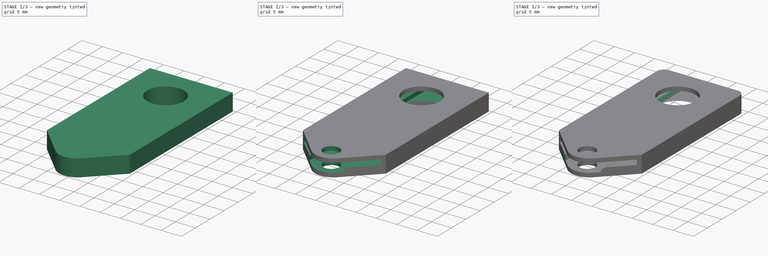
[diagram: build sequence overview — one tinted view per stage of 3, left to right]
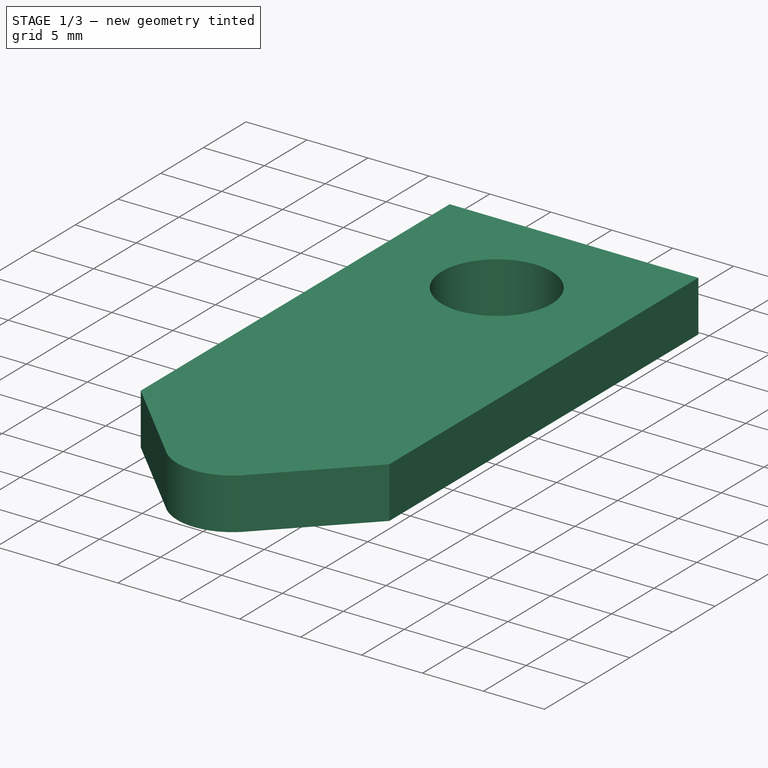
[diagram: stage 1 of 3 — iso view after this stage's code; geometry added in this stage tinted green]
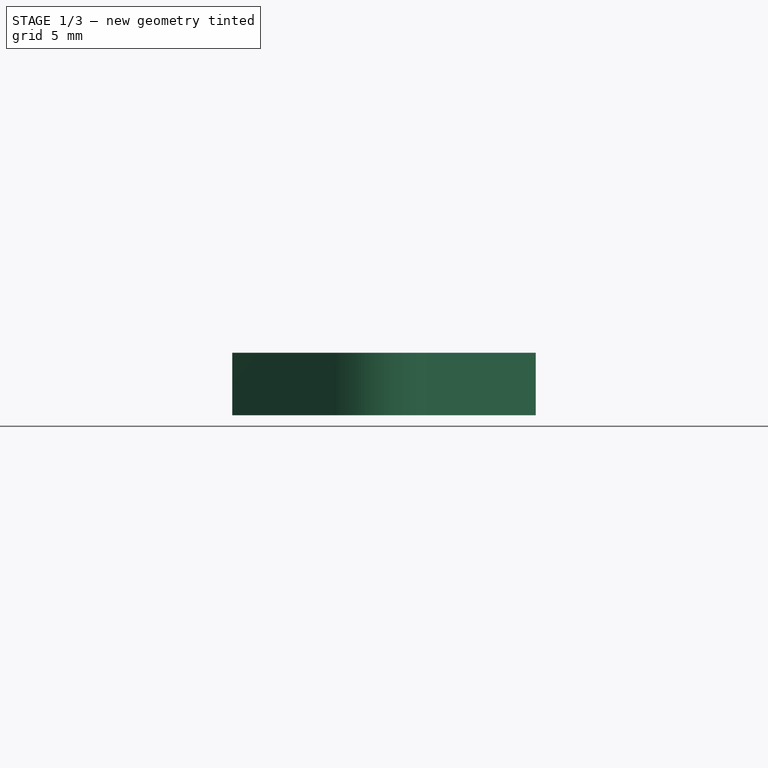
[diagram: stage 1 of 3 — front view after this stage's code; geometry added in this stage tinted green]
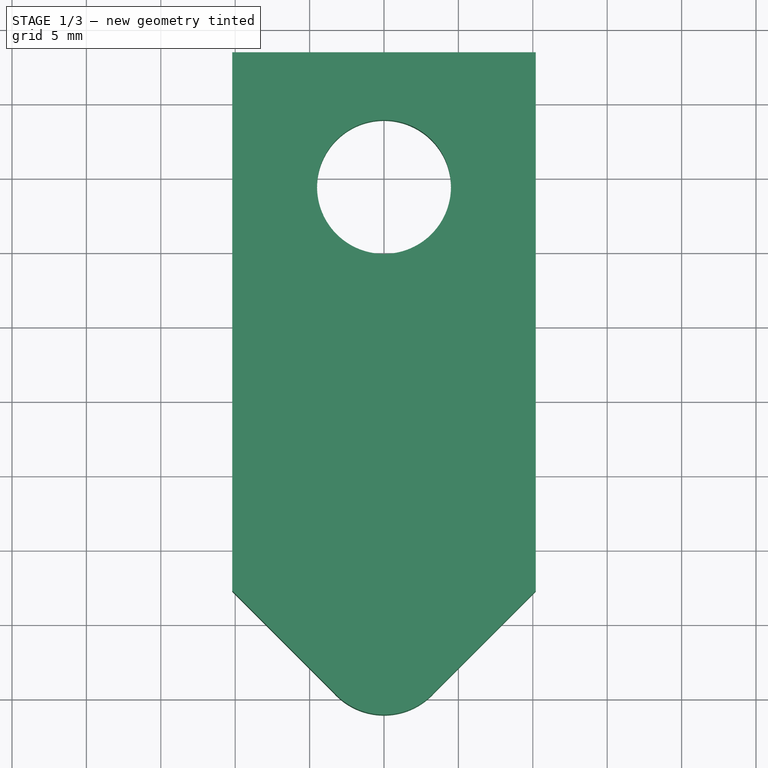
[diagram: stage 1 of 3 — top view after this stage's code; geometry added in this stage tinted green]
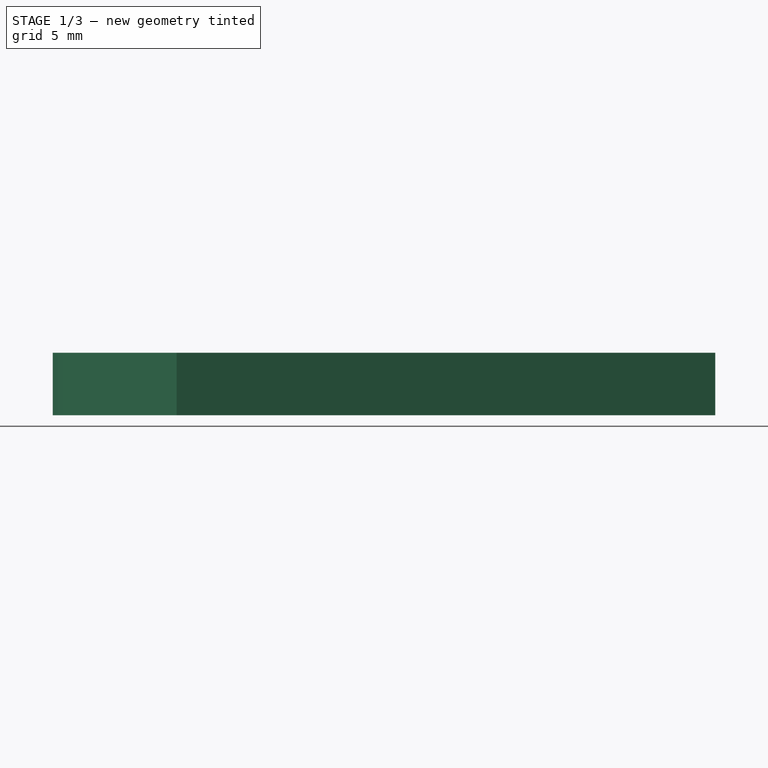
[diagram: stage 1 of 3 — right view after this stage's code; geometry added in this stage tinted green]
FCSTD DOCUMENT  (FreeCAD 0.19R24276 (Git))
Label: nfc_case_simple
License: All rights reserved
LicenseURL: http://en.wikipedia.org/wiki/All_rights_reserved
objects: Part::Feature×16, App::Part×16, Sketcher::SketchObject×4, PartDesign::Pocket×3, PartDesign::Fillet×2, PartDesign::Pad×1, PartDesign::Body×1
note: 33 computed .brp shape members not serialized (recipe doc carries the construction recipe); baked Part::Feature solids carry a one-line shape summary decoded from their .brp

FEATURE [Sketcher::SketchObject] Sketch005  label="top_base_sketch"
  FullyConstrained = true
  MapMode = 5
  Support = -> [XY_Plane019]
  sketch-geometry (6):
    g0: LineSegment StartX=-10.2 StartY=18.45 StartZ=0 EndX=10.2 EndY=18.45 EndZ=0
    g1: LineSegment StartX=10.2 StartY=18.45 StartZ=0 EndX=10.2 EndY=-17.75 EndZ=0
    g2: LineSegment StartX=-10.2 StartY=-17.75 StartZ=0 EndX=-10.2 EndY=18.45 EndZ=0
    g3: ArcOfCircle CenterX=0 CenterY=-21.525 CenterZ=0 NormalX=0 NormalY=0 NormalZ=1 AngleXU=0 Radius=4.54933 StartAngle=3.8749 EndAngle=5.54988
    g4: LineSegment StartX=-10.2 StartY=-17.75 StartZ=0 EndX=-3.38 EndY=-24.57 EndZ=0
    g5: LineSegment StartX=3.38 StartY=-24.57 StartZ=0 EndX=10.2 EndY=-17.75 EndZ=0
  constraints (19):
    c: Coincident(g0,g1)
    c: Coincident(g2,g0)
    c: Horizontal(g0)
    c: Vertical(g1)
    c: Vertical(g2)
    c: Distance(g1) = 36.2
    c: DistanceX(g2,g-1) = 10.2
    c: DistanceY(g1,g-1) = 17.75
    c: PointOnObject(g3,g-2)
    c: DistanceY(g3,g-1) = 21.525
    c: Horizontal(g3,g3)
    c: DistanceX(g2,g1) = 20.4
    c: Horizontal(g2,g1)
    c: Coincident(g4,g2)
    c: Coincident(g4,g3)
    c: Coincident(g5,g3)
    c: Coincident(g5,g1)
    c: Angle(g1,g5) = 2.35619
    c: DistanceY(g3,g-1) = 24.57
FEATURE [PartDesign::Pad] Pad003  label="base_block"
  Direction = (1,1,1)
  Length = 4.2
  Length2 = 100
  Profile = -> Sketch005
  Type = 0
FEATURE [Sketcher::SketchObject] Sketch016  label="air_cutout_sketch"
  FullyConstrained = true
  MapMode = 5
  Support = -> [XY_Plane019]
  sketch-geometry (1):
    g0: Circle CenterX=0 CenterY=9.4 CenterZ=0 NormalX=0 NormalY=0 NormalZ=1 AngleXU=0 Radius=4.5
  constraints (3):
    c: PointOnObject(g0,g-2)
    c: DistanceY(g-1,g0) = 9.4
    c: Radius(g0) = 4.5
FEATURE [PartDesign::Pocket] Pocket005  label="air_hole"
  BaseFeature = -> Pad003
  Length = 5
  Length2 = 100
  Profile = -> Sketch016
  Reversed = true
  Type = 0
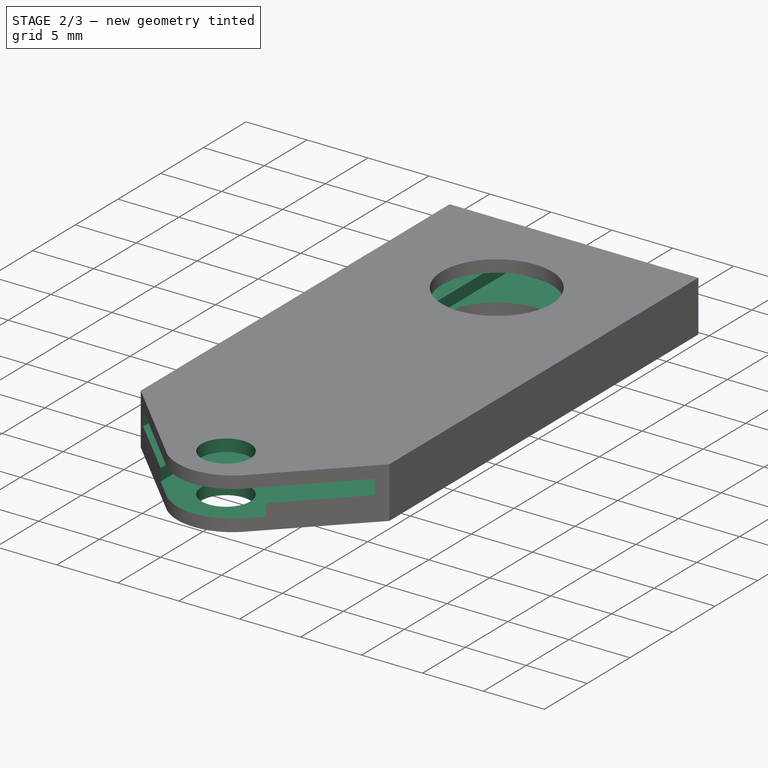
[diagram: stage 2 of 3 — iso view after this stage's code; geometry added in this stage tinted green]
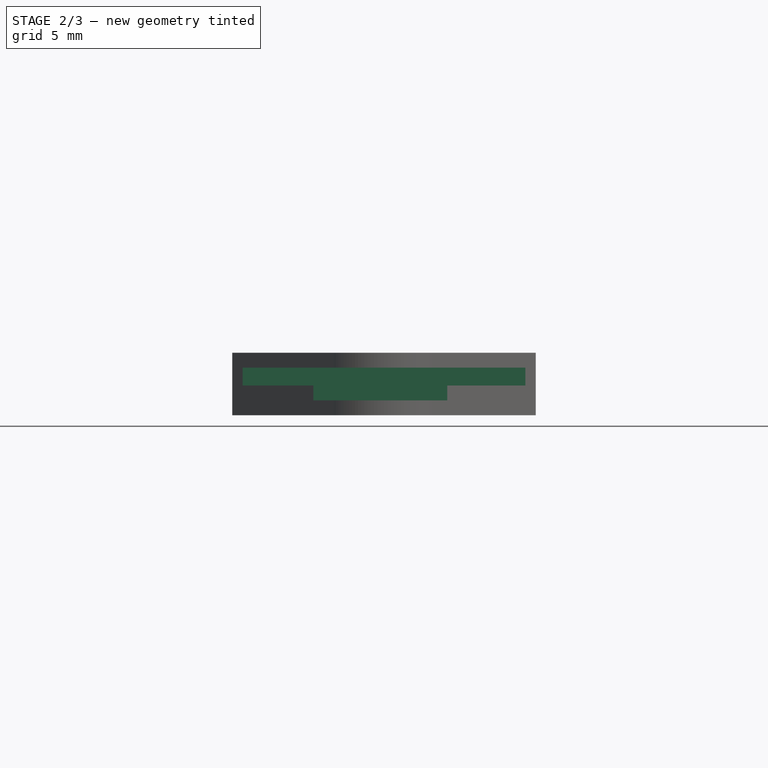
[diagram: stage 2 of 3 — front view after this stage's code; geometry added in this stage tinted green]
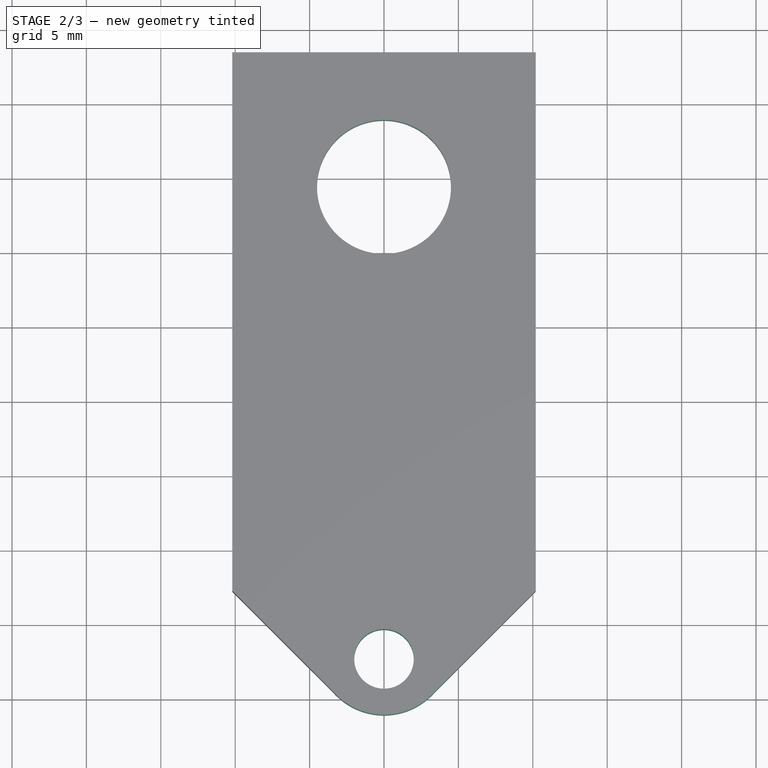
[diagram: stage 2 of 3 — top view after this stage's code; geometry added in this stage tinted green]
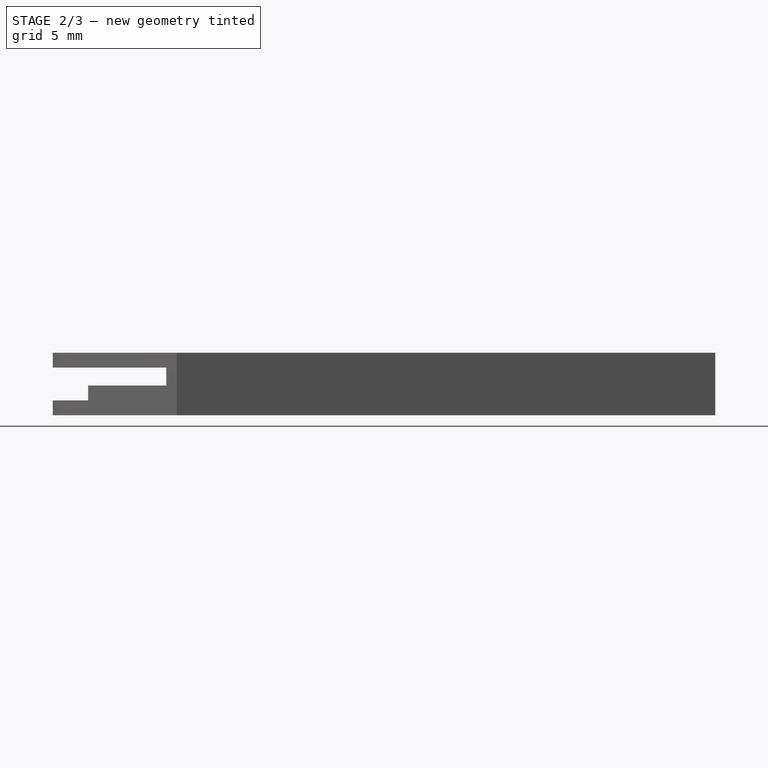
[diagram: stage 2 of 3 — right view after this stage's code; geometry added in this stage tinted green]
FEATURE [Sketcher::SketchObject] Sketch018
  FullyConstrained = true
  MapMode = 5
  Support = -> [XY_Plane019]
  sketch-geometry (1):
    g0: Circle CenterX=0 CenterY=-22.325 CenterZ=0 NormalX=0 NormalY=0 NormalZ=1 AngleXU=0 Radius=2
  constraints (3):
    c: PointOnObject(g0,g-2)
    c: Radius(g0) = 2
    c: DistanceY(g0,g-1) = 22.325
FEATURE [PartDesign::Pocket] Pocket008  label="misty_keyhole"
  BaseFeature = -> Pocket005
  Length = 5
  Length2 = 100
  Profile = -> Sketch018
  Reversed = true
  Type = 0
FEATURE [Sketcher::SketchObject] Sketch027
  FullyConstrained = true
  MapMode = 5
  Placement = pos=(0,0,0) rot=(1,0,0;1.5708rad)
  Support = -> [XZ_Plane019]
  sketch-geometry (8):
    g0: LineSegment StartX=9.5 StartY=3.2 StartZ=0 EndX=9.5 EndY=2 EndZ=0
    g1: LineSegment StartX=9.5 StartY=2 StartZ=0 EndX=4.25 EndY=2 EndZ=0
    g2: LineSegment StartX=4.25 StartY=2 StartZ=0 EndX=4.25 EndY=1 EndZ=0
    g3: LineSegment StartX=4.25 StartY=1 StartZ=0 EndX=-4.75 EndY=1 EndZ=0
    g4: LineSegment StartX=-4.75 StartY=1 StartZ=0 EndX=-4.75 EndY=2 EndZ=0
    g5: LineSegment StartX=-4.75 StartY=2 StartZ=0 EndX=-9.5 EndY=2 EndZ=0
    g6: LineSegment StartX=-9.5 StartY=2 StartZ=0 EndX=-9.5 EndY=3.2 EndZ=0
    g7: LineSegment StartX=-9.5 StartY=3.2 StartZ=0 EndX=9.5 EndY=3.2 EndZ=0
  constraints (24):
    c: Vertical(g0)
    c: Coincident(g0,g1)
    c: Horizontal(g1)
    c: Coincident(g1,g2)
    c: Vertical(g2)
    c: Coincident(g2,g3)
    c: Horizontal(g3)
    c: Coincident(g3,g4)
    c: Vertical(g4)
    c: Coincident(g4,g5)
    c: Horizontal(g5)
    c: Coincident(g5,g6)
    c: Vertical(g6)
    c: Coincident(g6,g7)
    c: Coincident(g7,g0)
    c: Horizontal(g7)
    c: Distance(g2) = 1
    c: Distance(g0) = 1.2
    c: Horizontal(g1,g4)
    c: Distance(g3) = 9
    c: Distance(g7) = 19
    c: DistanceY(g-1,g0) = 3.2
    c: DistanceX(g-1,g0) = 9.5
    c: Distance(g5) = 4.75
FEATURE [PartDesign::Pocket] Pocket014  label="parts_cutout"
  BaseFeature = -> Pocket008
  Length = 17.7
  Length2 = 30
  Profile = -> Sketch027
  Type = 4
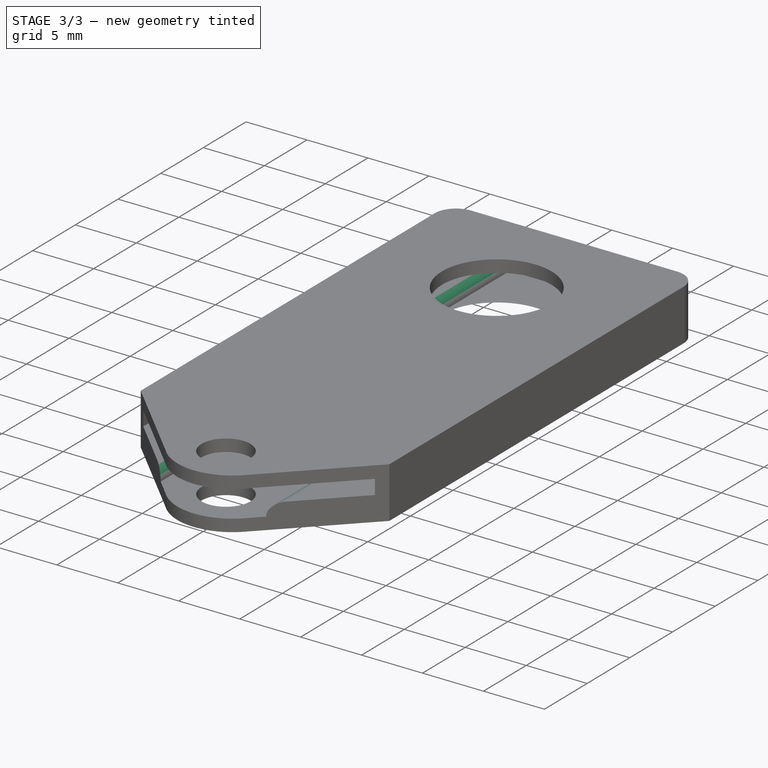
[diagram: stage 3 of 3 — iso view after this stage's code; geometry added in this stage tinted green]
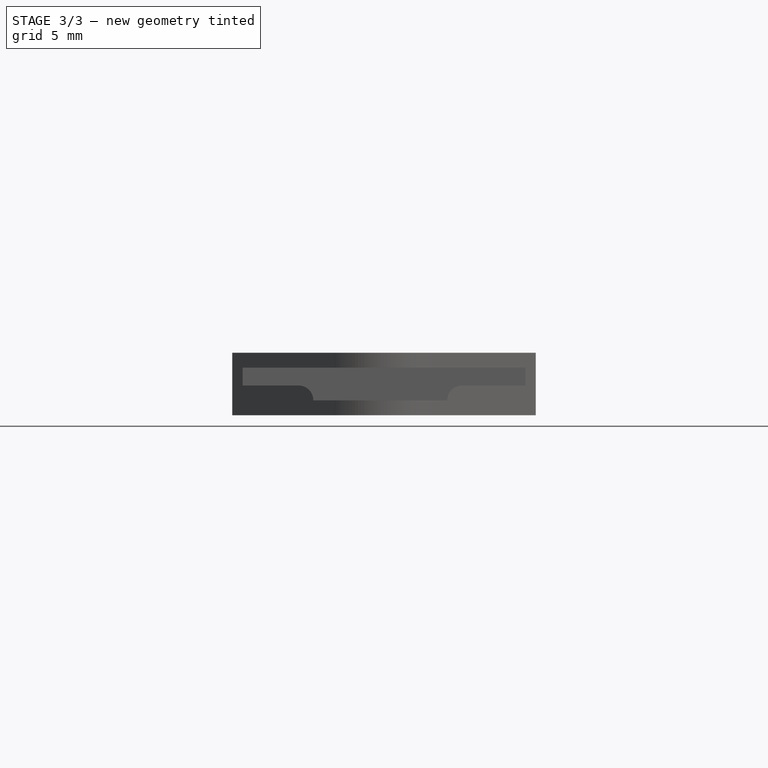
[diagram: stage 3 of 3 — front view after this stage's code; geometry added in this stage tinted green]
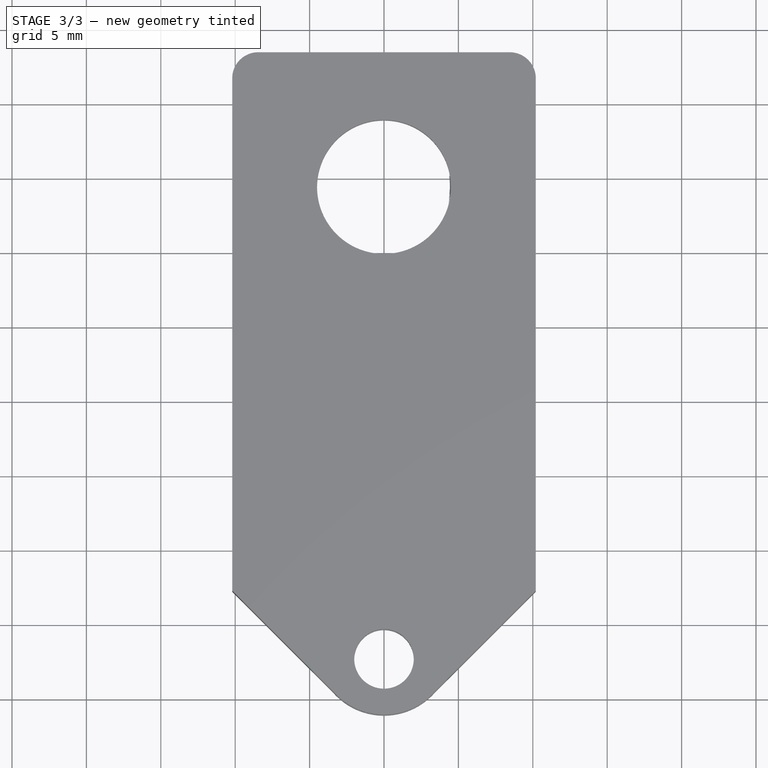
[diagram: stage 3 of 3 — top view after this stage's code; geometry added in this stage tinted green]
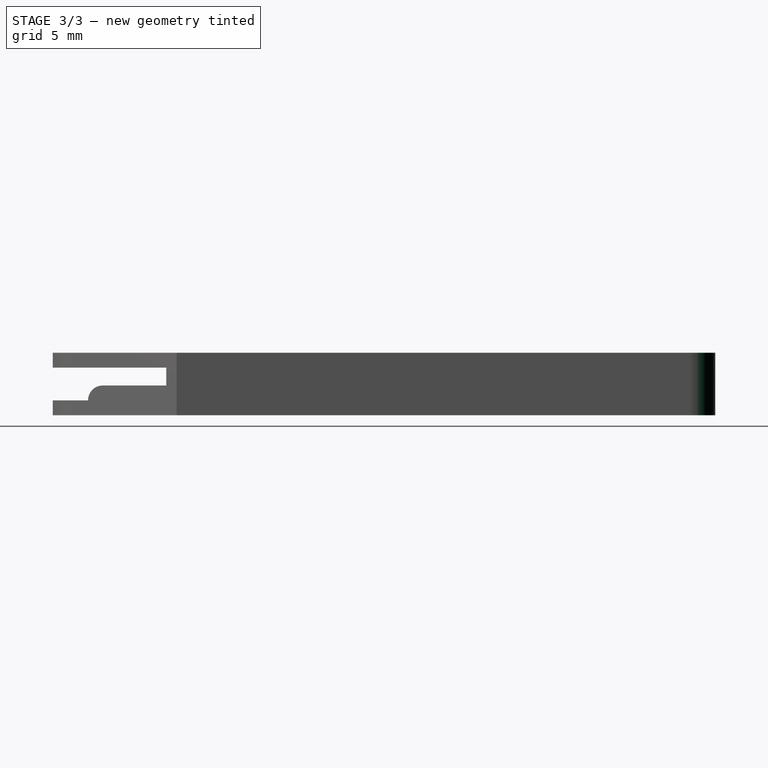
[diagram: stage 3 of 3 — right view after this stage's code; geometry added in this stage tinted green]
FEATURE [Part::Feature] Part__Feature  label="C_0603_1608Metric"
  shape: bbox 1.6 x 0.8 x 0.8 mm, 28 faces (baked)
FEATURE [App::Part] C_0603_1608Metric  label="C_0603_1608Metric001"
  Group = -> [Part__Feature]
  Origin = -> Origin
  Placement = pos=(2.5,0.623832,0.836) rot=(0,0,1;0rad)
FEATURE [Part::Feature] Part__Feature001  label="C_0603_1608Metric002"
  shape: bbox 1.6 x 0.8 x 0.8 mm, 28 faces (baked)
FEATURE [App::Part] C_0603_1608Metric001  label="C_0603_1608Metric003"
  Group = -> [Part__Feature001]
  Origin = -> Origin020
  Placement = pos=(-2,-4.62617,0.836) rot=(0,0,1;0rad)
FEATURE [Part::Feature] Part__Feature002  label="C_0603_1608Metric004"
  shape: bbox 1.6 x 0.8 x 0.8 mm, 28 faces (baked)
FEATURE [App::Part] C_0603_1608Metric002  label="C_0603_1608Metric005"
  Group = -> [Part__Feature002]
  Origin = -> Origin021
  Placement = pos=(-2,-2.32617,0.836) rot=(0,0,1;1.5708rad)
FEATURE [Part::Feature] Part__Feature003  label="C_0603_1608Metric006"
  shape: bbox 1.6 x 0.8 x 0.8 mm, 28 faces (baked)
FEATURE [App::Part] C_0603_1608Metric003  label="C_0603_1608Metric007"
  Group = -> [Part__Feature003]
  Origin = -> Origin022
  Placement = pos=(-0.399997,-2.32617,0.836) rot=(0,0,1;1.5708rad)
FEATURE [Part::Feature] Part__Feature004  label="QFN-16-1EP_3x3mm_P0.5mm_EP1.7x1.7mm"
  shape: bbox 3 x 3 x 0.785 mm, 110 faces (baked)
FEATURE [App::Part] QFN_16_1EP_3x3mm_P0_5mm_EP1_7x1_7mm  label="QFN-16-1EP_3x3mm_P0.5mm_EP1.7x1.7mm001"
  Group = -> [Part__Feature004]
  Origin = -> Origin023
  Placement = pos=(3,-3.28796,0.836) rot=(0,0,1;1.5708rad)
FEATURE [Part::Feature] Part__Feature005  label="WSON_6_1EP_2x2mm_P065mm_EP1x16mm"
  shape: bbox 2 x 1.98 x 0.82 mm, 50 faces (baked)
FEATURE [App::Part] WSON_6_1EP_2x2mm_P0_65mm_EP1x1_6mm  label="WSON-6-1EP_2x2mm_P0.65mm_EP1x1.6mm"
  Group = -> [Part__Feature005]
  Origin = -> Origin024
  Placement = pos=(3e-06,14.3738,0.836) rot=(0,0,-1;1.5708rad)
FEATURE [Part::Feature] Part__Feature006  label="C_0603_1608Metric008"
  shape: bbox 1.6 x 0.8 x 0.8 mm, 28 faces (baked)
FEATURE [App::Part] C_0603_1608Metric004  label="C_0603_1608Metric009"
  Group = -> [Part__Feature006]
  Origin = -> Origin025
  Placement = pos=(-2,-6.17617,0.836) rot=(0,0,1;0rad)
FEATURE [Part::Feature] Part__Feature007  label="UQFN-20-1EP_3x3mm_Pitch0.4mm"
  shape: bbox 3 x 3 x 0.52 mm, 134 faces (baked)
FEATURE [App::Part] UQFN_20_1EP_3x3mm_P0_4mm_EP1_85x1_85mm  label="UQFN-20-1EP_3x3mm_P0.4mm_EP1.85x1.85mm"
  Group = -> [Part__Feature007]
  Origin = -> Origin026
  Placement = pos=(-2.15,3.07383,0.836) rot=(0,0,1;0rad)
FEATURE [Part::Feature] Part__Feature008  label="C_0603_1608Metric010"
  shape: bbox 1.6 x 0.8 x 0.8 mm, 28 faces (baked)
FEATURE [App::Part] C_0603_1608Metric005  label="C_0603_1608Metric011"
  Group = -> [Part__Feature008]
  Origin = -> Origin027
  Placement = pos=(-3.6,-2.32617,0.836) rot=(0,0,1;1.5708rad)
FEATURE [Part::Feature] Part__Feature009  label="D_0603"
  shape: bbox 1.6 x 0.87 x 0.66 mm, 39 faces (baked)
FEATURE [App::Part] D_0603_1608Metric
  Group = -> [Part__Feature009]
  Origin = -> Origin028
  Placement = pos=(0.800003,-8.67617,0.836) rot=(0,0,-1;1.5708rad)
FEATURE [Part::Feature] Part__Feature010  label="R_0603_1608Metric"
  shape: bbox 1.6 x 0.8 x 0.45 mm, 26 faces (baked)
FEATURE [App::Part] R_0603_1608Metric  label="R_0603_1608Metric001"
  Group = -> [Part__Feature010]
  Origin = -> Origin029
  Placement = pos=(2.5,4.87383,0.836) rot=(0,0,1;0rad)
FEATURE [Part::Feature] Part__Feature011  label="C_0402_1005Metric"
  shape: bbox 1 x 0.5 x 0.5 mm, 28 faces (baked)
FEATURE [App::Part] C_0402_1005Metric  label="C_0402_1005Metric001"
  Group = -> [Part__Feature011]
  Origin = -> Origin030
  Placement = pos=(3e-06,12.4238,0.836) rot=(0,0,1;3.14159rad)
FEATURE [Part::Feature] Part__Feature012  label="C_0402_1005Metric002"
  shape: bbox 1 x 0.5 x 0.5 mm, 28 faces (baked)
FEATURE [App::Part] C_0402_1005Metric001  label="C_0402_1005Metric003"
  Group = -> [Part__Feature012]
  Origin = -> Origin031
  Placement = pos=(2.5,-6.62617,0.836) rot=(0,0,1;3.14159rad)
FEATURE [Part::Feature] Part__Feature013  label="R_0603_1608Metric002"
  shape: bbox 1.6 x 0.8 x 0.45 mm, 26 faces (baked)
FEATURE [App::Part] R_0603_1608Metric001  label="R_0603_1608Metric003"
  Group = -> [Part__Feature013]
  Origin = -> Origin032
  Placement = pos=(2.5,2.52383,0.836) rot=(0,0,1;0rad)
FEATURE [Part::Feature] Part__Feature014  label="D_0604"
  shape: bbox 1.6 x 0.87 x 0.66 mm, 39 faces (baked)
FEATURE [App::Part] D_0603_1608Metric001
  Group = -> [Part__Feature014]
  Origin = -> Origin033
  Placement = pos=(-0.799997,-8.67617,0.836) rot=(0,0,-1;1.5708rad)
FEATURE [Part::Feature] Part__Feature015  label="nfc_sense_PCB"
  shape: bbox 18.6 x 43.15 x 0.786 mm, 19 faces (baked)
FEATURE [App::Part] nfc_sense_1  label="nfc_sense 1"
  Group = -> [C_0603_1608Metric,C_0603_1608Metric001,C_0603_1608Metric002,C_0603_1608Metric003,QFN_16_1EP_3x3mm_P0_5mm_EP1_7x1_7mm,WSON_6_1EP_2x2mm_P0_65mm_EP1x1_6mm,C_0603_1608Metric004,UQFN_20_1EP_3x3mm_P0_4mm_EP1_85x1_85mm,C_0603_1608Metric005,D_0603_1608Metric,R_0603_1608Metric,C_0402_1005Metric,C_0402_1005Metric001,R_0603_1608Metric001,D_0603_1608Metric001,Part__Feature015]
  Origin = -> Origin034
  Placement = pos=(-4e-16,-4.5,3.1) rot=(0,1,0;3.14159rad)
FEATURE [PartDesign::Fillet] Fillet
  Base = -> Pocket014 [Edge63,Edge27]
  BaseFeature = -> Pocket014
  Radius = 0.99
  SupportTransform = false
FEATURE [PartDesign::Fillet] Fillet001
  Base = -> Fillet [Edge68,Edge42]
  BaseFeature = -> Fillet
  Radius = 1.75
  SupportTransform = false
FEATURE [PartDesign::Body] Body001  label="simple_case"
  Group = -> [Sketch005,Pad003,Sketch016,Pocket005,Sketch018,Pocket008,Sketch027,Pocket014,Fillet,Fillet001]
  Origin = -> Origin019
  Tip = -> Fillet001
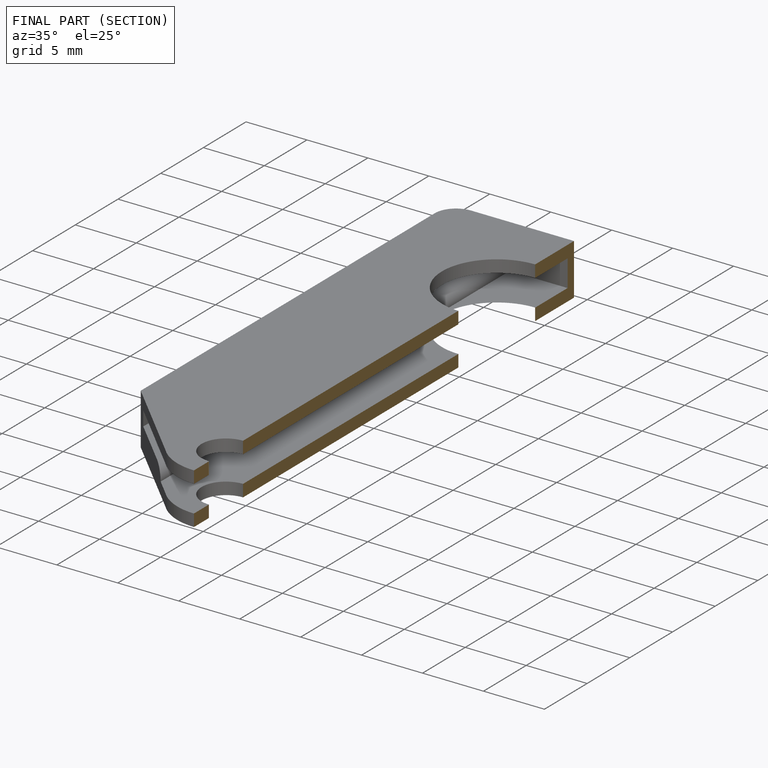
[diagram: finished part — half-section view (interior)]
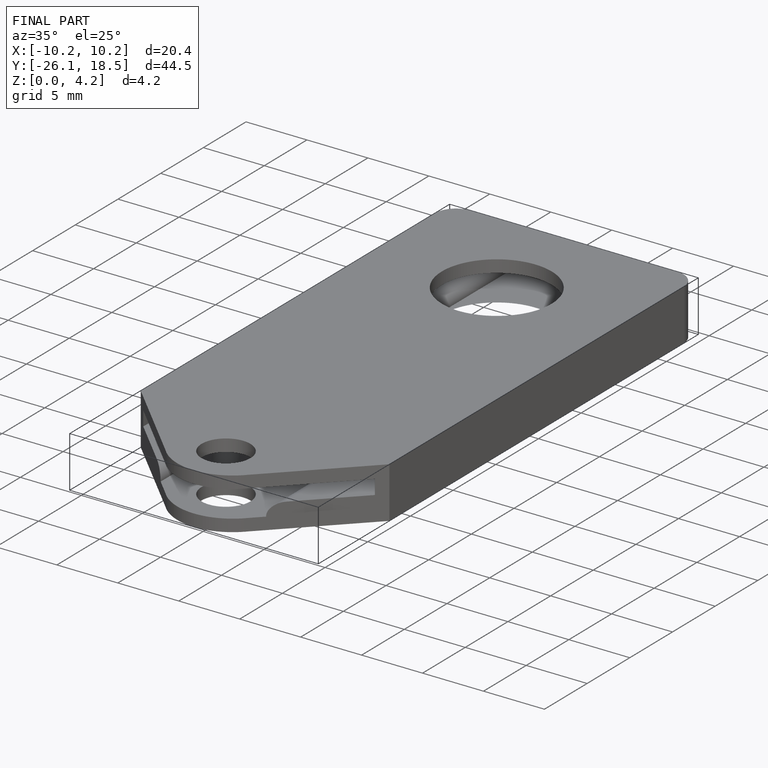
[diagram: finished part — iso view with bounding-box wireframe]
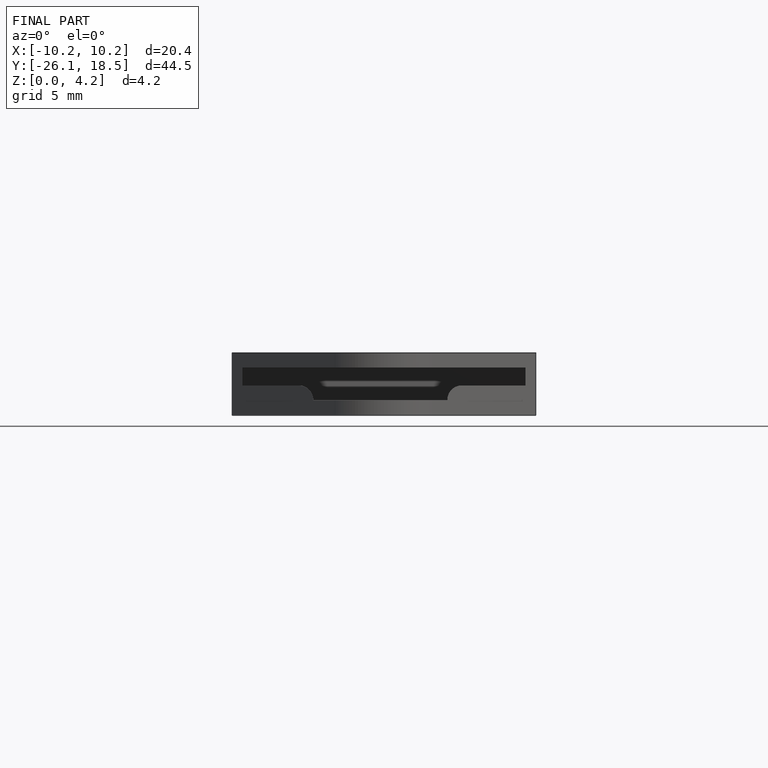
[diagram: finished part — front view with bounding-box wireframe]
